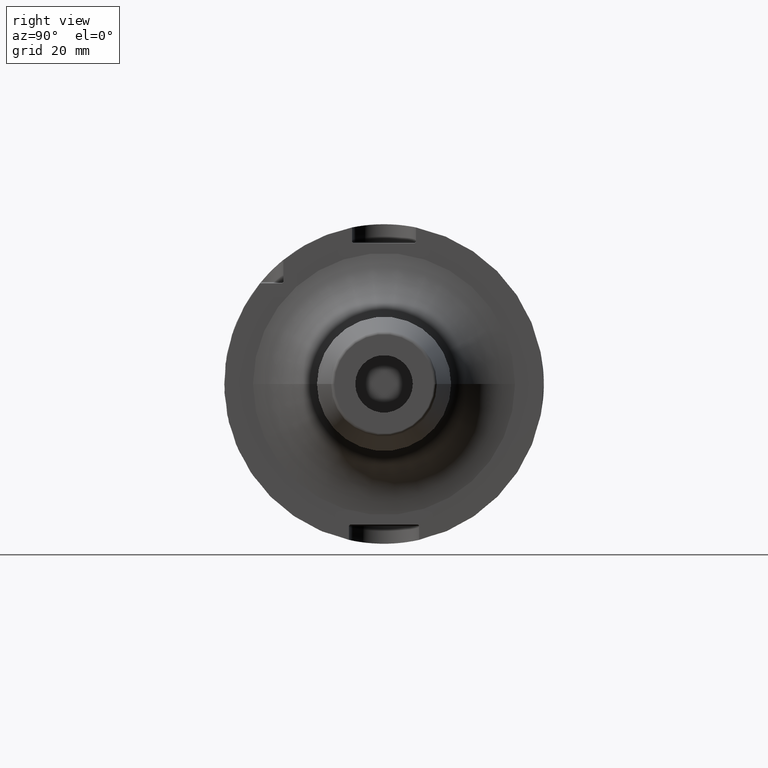
[diagram: clean part render]
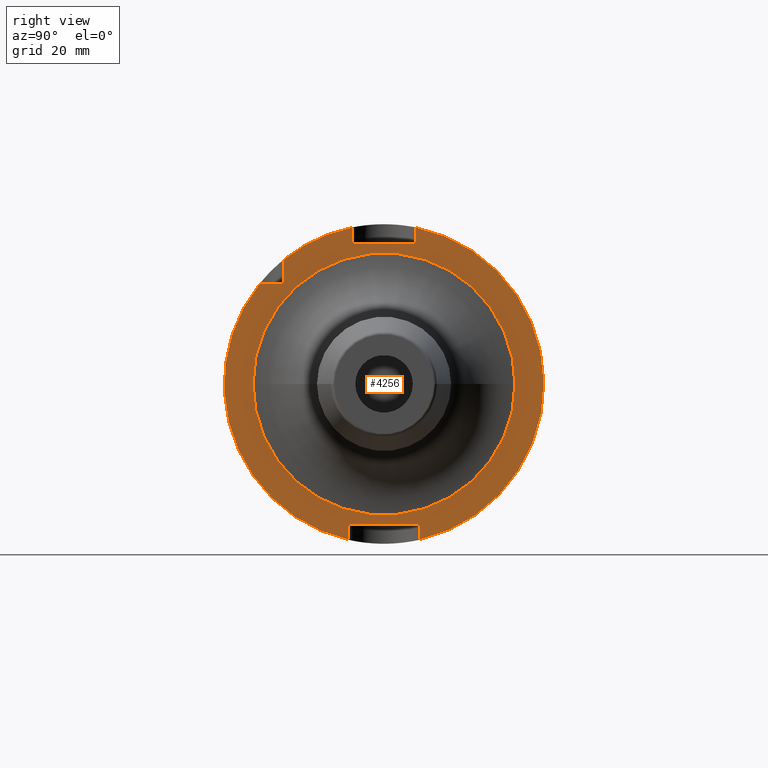
[diagram: same view with one face highlighted and labeled with its STEP entity id]
A machine part, right view. The second image highlights one B-rep face of the part: STEP entity #4256.
In plain terms, the highlighted planar face has unit normal (1, 0, 0).
Its self-contained STEP definition (entity closure, byte-faithful):
#1051=DIRECTION('',(0.E0,-7.071067811865E-1,-7.071067811865E-1));
#1052=VECTOR('',#1051,5.656854249492E-1);
#1053=CARTESIAN_POINT('',(2.9E1,-3.15E1,3.19E1));
#1054=LINE('',#1053,#1052);
#1059=DIRECTION('',(0.E0,1.E0,0.E0));
#1060=VECTOR('',#1059,6.929756630708E0);
#1061=CARTESIAN_POINT('',(2.9E1,-3.882975663071E1,3.15E1));
#1062=LINE('',#1061,#1060);
#1063=DIRECTION('',(0.E0,0.E0,-1.E0));
#1064=VECTOR('',#1063,6.929756630708E0);
#1065=CARTESIAN_POINT('',(2.9E1,-3.15E1,3.882975663071E1));
#1066=LINE('',#1065,#1064);
#1067=DIRECTION('',(0.E0,0.E0,-1.E0));
#1068=VECTOR('',#1067,4.589794855664E0);
#1069=CARTESIAN_POINT('',(2.9E1,-1.E1,4.898979485566E1));
#1070=LINE('',#1069,#1068);
#1071=DIRECTION('',(0.E0,1.E0,0.E0));
#1072=VECTOR('',#1071,1.92E1);
#1073=CARTESIAN_POINT('',(2.9E1,-9.6E0,4.4E1));
#1074=LINE('',#1073,#1072);
#1075=DIRECTION('',(0.E0,0.E0,-1.E0));
#1076=VECTOR('',#1075,4.589794855664E0);
#1077=CARTESIAN_POINT('',(2.9E1,1.E1,4.898979485566E1));
#1078=LINE('',#1077,#1076);
#1079=DIRECTION('',(0.E0,0.E0,1.E0));
#1080=VECTOR('',#1079,4.374993593029E0);
#1081=CARTESIAN_POINT('',(2.9E1,1.1E1,-4.877499359303E1));
#1082=LINE('',#1081,#1080);
#1083=DIRECTION('',(0.E0,-1.E0,0.E0));
#1084=VECTOR('',#1083,2.12E1);
#1085=CARTESIAN_POINT('',(2.9E1,1.06E1,-4.4E1));
#1086=LINE('',#1085,#1084);
#1087=DIRECTION('',(0.E0,0.E0,1.E0));
#1088=VECTOR('',#1087,4.374993593029E0);
#1089=CARTESIAN_POINT('',(2.9E1,-1.1E1,-4.877499359303E1));
#1090=LINE('',#1089,#1088);
#1091=CARTESIAN_POINT('',(2.9E1,0.E0,0.E0));
#1092=DIRECTION('',(1.E0,0.E0,0.E0));
#1093=DIRECTION('',(0.E0,-1.E0,0.E0));
#1094=AXIS2_PLACEMENT_3D('',#1091,#1092,#1093);
#1096=CARTESIAN_POINT('',(2.9E1,0.E0,0.E0));
#1097=DIRECTION('',(1.E0,0.E0,0.E0));
#1098=DIRECTION('',(0.E0,1.E0,0.E0));
#1099=AXIS2_PLACEMENT_3D('',#1096,#1097,#1098);
#1114=CARTESIAN_POINT('',(2.9E1,0.E0,0.E0));
#1115=DIRECTION('',(1.E0,0.E0,0.E0));
#1116=DIRECTION('',(0.E0,2.2E-1,-9.754998718606E-1));
#1117=AXIS2_PLACEMENT_3D('',#1114,#1115,#1116);
#1127=CARTESIAN_POINT('',(2.9E1,0.E0,0.E0));
#1128=DIRECTION('',(1.E0,0.E0,0.E0));
#1129=DIRECTION('',(0.E0,-7.765951326142E-1,6.3E-1));
#1130=AXIS2_PLACEMENT_3D('',#1127,#1128,#1129);
#1144=CARTESIAN_POINT('',(2.9E1,0.E0,0.E0));
#1145=DIRECTION('',(1.E0,0.E0,0.E0));
#1146=DIRECTION('',(0.E0,-2.E-1,9.797958971133E-1));
#1147=AXIS2_PLACEMENT_3D('',#1144,#1145,#1146);
#1251=DIRECTION('',(0.E0,7.071067811866E-1,-7.071067811865E-1));
#1252=VECTOR('',#1251,5.656854249492E-1);
#1253=CARTESIAN_POINT('',(2.9E1,1.06E1,-4.4E1));
#1254=LINE('',#1253,#1252);
#1259=DIRECTION('',(0.E0,7.071067811866E-1,7.071067811865E-1));
#1260=VECTOR('',#1259,5.656854249492E-1);
#1261=CARTESIAN_POINT('',(2.9E1,-1.1E1,-4.44E1));
#1262=LINE('',#1261,#1260);
#1748=DIRECTION('',(0.E0,-7.071067811866E-1,-7.071067811865E-1));
#1749=VECTOR('',#1748,5.656854249492E-1);
#1750=CARTESIAN_POINT('',(2.9E1,1.E1,4.44E1));
#1751=LINE('',#1750,#1749);
#1756=DIRECTION('',(0.E0,-7.071067811866E-1,7.071067811865E-1));
#1757=VECTOR('',#1756,5.656854249492E-1);
#1758=CARTESIAN_POINT('',(2.9E1,-9.6E0,4.4E1));
#1759=LINE('',#1758,#1757);
#2946=CARTESIAN_POINT('',(2.9E1,-9.6E0,4.4E1));
#2947=CARTESIAN_POINT('',(2.9E1,-1.E1,4.44E1));
#2948=VERTEX_POINT('',#2946);
#2949=VERTEX_POINT('',#2947);
#2950=CARTESIAN_POINT('',(2.9E1,1.E1,4.44E1));
#2951=CARTESIAN_POINT('',(2.9E1,9.6E0,4.4E1));
#2952=VERTEX_POINT('',#2950);
#2953=VERTEX_POINT('',#2951);
#2954=CARTESIAN_POINT('',(2.9E1,1.06E1,-4.4E1));
#2955=CARTESIAN_POINT('',(2.9E1,1.1E1,-4.44E1));
#2956=VERTEX_POINT('',#2954);
#2957=VERTEX_POINT('',#2955);
#2958=CARTESIAN_POINT('',(2.9E1,-1.1E1,-4.44E1));
#2959=CARTESIAN_POINT('',(2.9E1,-1.06E1,-4.4E1));
#2960=VERTEX_POINT('',#2958);
#2961=VERTEX_POINT('',#2959);
#2999=CARTESIAN_POINT('',(2.9E1,1.1E1,-4.877499359303E1));
#3001=VERTEX_POINT('',#2999);
#3007=CARTESIAN_POINT('',(2.9E1,-1.1E1,-4.877499359303E1));
#3009=VERTEX_POINT('',#3007);
#3042=CARTESIAN_POINT('',(2.9E1,-1.E1,4.898979485566E1));
#3043=VERTEX_POINT('',#3042);
#3044=CARTESIAN_POINT('',(2.9E1,1.E1,4.898979485566E1));
#3045=VERTEX_POINT('',#3044);
#3048=CARTESIAN_POINT('',(2.9E1,-3.15E1,3.19E1));
#3049=CARTESIAN_POINT('',(2.9E1,-3.19E1,3.15E1));
#3050=VERTEX_POINT('',#3048);
#3051=VERTEX_POINT('',#3049);
#3057=CARTESIAN_POINT('',(2.9E1,-3.882975663071E1,3.15E1));
#3059=VERTEX_POINT('',#3057);
#3061=CARTESIAN_POINT('',(2.9E1,-3.15E1,3.882975663071E1));
#3063=VERTEX_POINT('',#3061);
#3137=CARTESIAN_POINT('',(2.9E1,-4.1E1,-1.004210375301E-14));
#3138=CARTESIAN_POINT('',(2.9E1,4.1E1,0.E0));
#3139=VERTEX_POINT('',#3137);
#3140=VERTEX_POINT('',#3138);
#4212=CARTESIAN_POINT('',(2.9E1,0.E0,0.E0));
#4213=DIRECTION('',(1.E0,0.E0,0.E0));
#4214=DIRECTION('',(0.E0,-1.E0,0.E0));
#4215=AXIS2_PLACEMENT_3D('',#4212,#4213,#4214);
#4216=PLANE('',#4215);
#4218=ORIENTED_EDGE('',*,*,#4217,.T.);
#4219=ORIENTED_EDGE('',*,*,#4202,.F.);
#4221=ORIENTED_EDGE('',*,*,#4220,.F.);
#4223=ORIENTED_EDGE('',*,*,#4222,.F.);
#4225=ORIENTED_EDGE('',*,*,#4224,.T.);
#4227=ORIENTED_EDGE('',*,*,#4226,.F.);
#4229=ORIENTED_EDGE('',*,*,#4228,.T.);
#4231=ORIENTED_EDGE('',*,*,#4230,.F.);
#4233=ORIENTED_EDGE('',*,*,#4232,.F.);
#4235=ORIENTED_EDGE('',*,*,#4234,.F.);
#4237=ORIENTED_EDGE('',*,*,#4236,.T.);
#4239=ORIENTED_EDGE('',*,*,#4238,.F.);
#4241=ORIENTED_EDGE('',*,*,#4240,.T.);
#4243=ORIENTED_EDGE('',*,*,#4242,.F.);
#4245=ORIENTED_EDGE('',*,*,#4244,.F.);
#4247=ORIENTED_EDGE('',*,*,#4246,.F.);
#4248=EDGE_LOOP('',(#4218,#4219,#4221,#4223,#4225,#4227,#4229,#4231,#4233,#4235,
#4237,#4239,#4241,#4243,#4245,#4247));
#4249=FACE_OUTER_BOUND('',#4248,.F.);
#4251=ORIENTED_EDGE('',*,*,#4250,.T.);
#4253=ORIENTED_EDGE('',*,*,#4252,.T.);
#4254=EDGE_LOOP('',(#4251,#4253));
#4255=FACE_BOUND('',#4254,.F.);
#4256=ADVANCED_FACE('',(#4249,#4255),#4216,.T.);
#1095=CIRCLE('',#1094,4.1E1);
#1100=CIRCLE('',#1099,4.1E1);
#1118=CIRCLE('',#1117,5.E1);
#1131=CIRCLE('',#1130,5.E1);
#1148=CIRCLE('',#1147,5.E1);
#4202=EDGE_CURVE('',#3050,#3051,#1054,.T.);
#4217=EDGE_CURVE('',#3059,#3051,#1062,.T.);
#4220=EDGE_CURVE('',#3063,#3050,#1066,.T.);
#4222=EDGE_CURVE('',#3043,#3063,#1148,.T.);
#4224=EDGE_CURVE('',#3043,#2949,#1070,.T.);
#4226=EDGE_CURVE('',#2948,#2949,#1759,.T.);
#4228=EDGE_CURVE('',#2948,#2953,#1074,.T.);
#4230=EDGE_CURVE('',#2952,#2953,#1751,.T.);
#4232=EDGE_CURVE('',#3045,#2952,#1078,.T.);
#4234=EDGE_CURVE('',#3001,#3045,#1118,.T.);
#4236=EDGE_CURVE('',#3001,#2957,#1082,.T.);
#4238=EDGE_CURVE('',#2956,#2957,#1254,.T.);
#4240=EDGE_CURVE('',#2956,#2961,#1086,.T.);
#4242=EDGE_CURVE('',#2960,#2961,#1262,.T.);
#4244=EDGE_CURVE('',#3009,#2960,#1090,.T.);
#4246=EDGE_CURVE('',#3059,#3009,#1131,.T.);
#4250=EDGE_CURVE('',#3139,#3140,#1095,.T.);
#4252=EDGE_CURVE('',#3140,#3139,#1100,.T.);